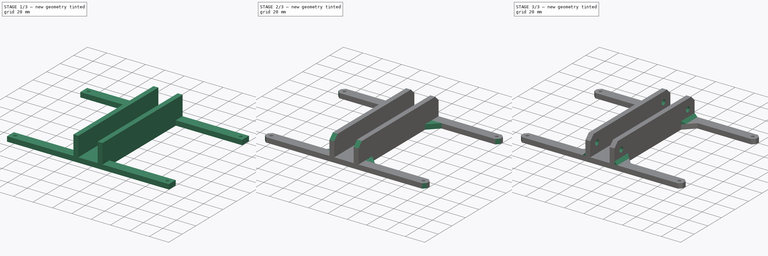
[diagram: build sequence overview — one tinted view per stage of 3, left to right]
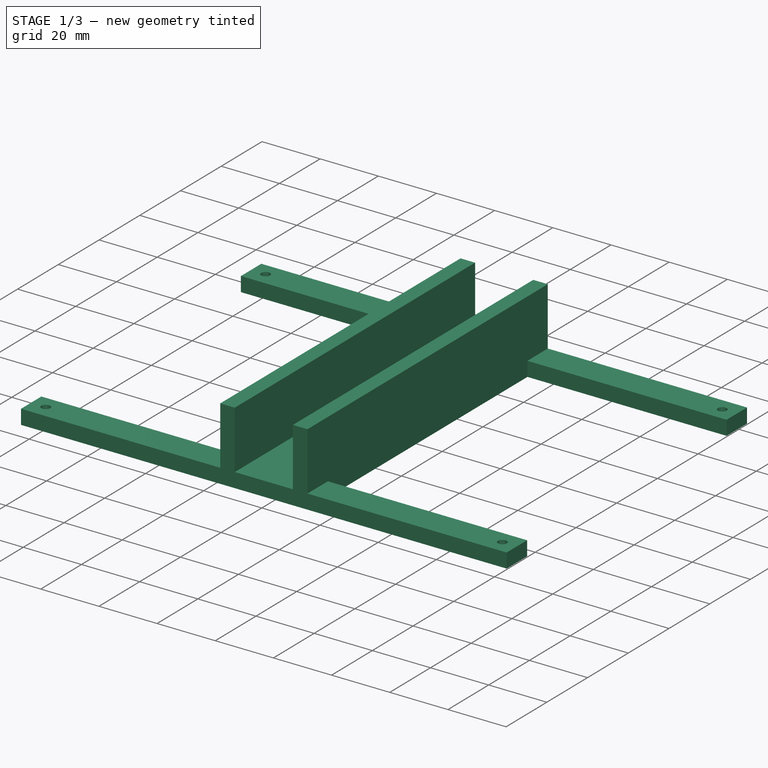
[diagram: stage 1 of 3 — iso view after this stage's code; geometry added in this stage tinted green]
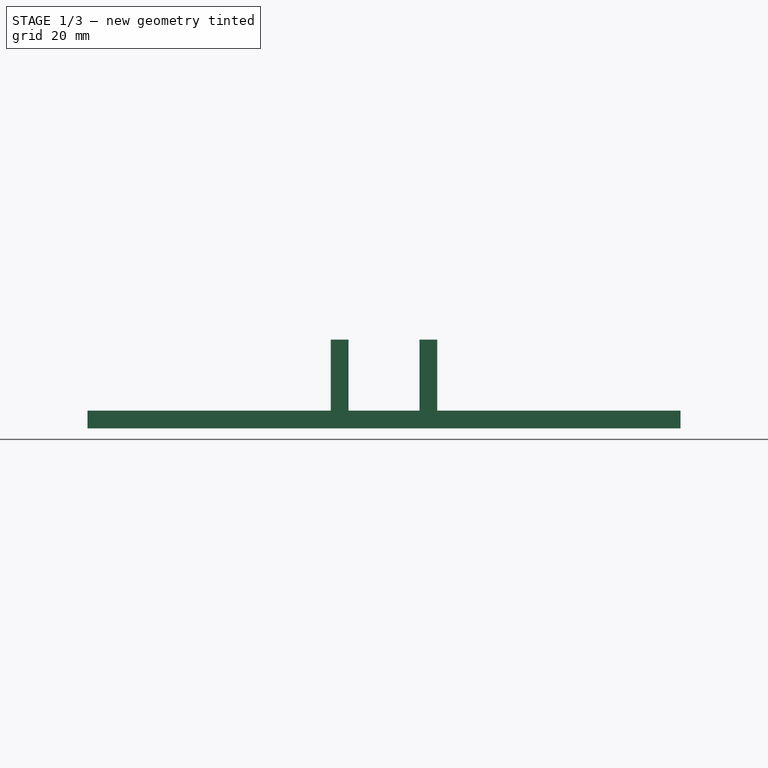
[diagram: stage 1 of 3 — front view after this stage's code; geometry added in this stage tinted green]
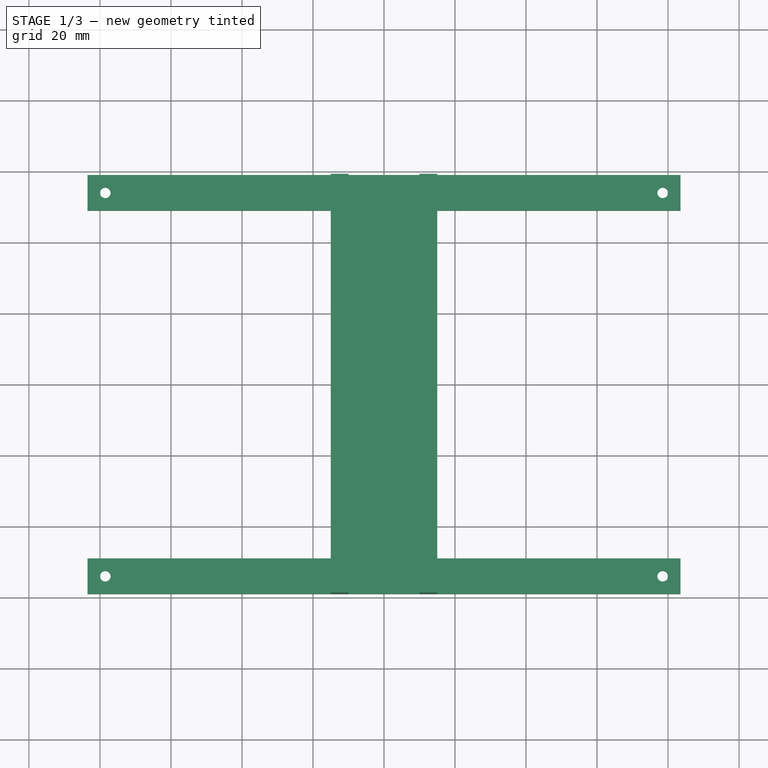
[diagram: stage 1 of 3 — top view after this stage's code; geometry added in this stage tinted green]
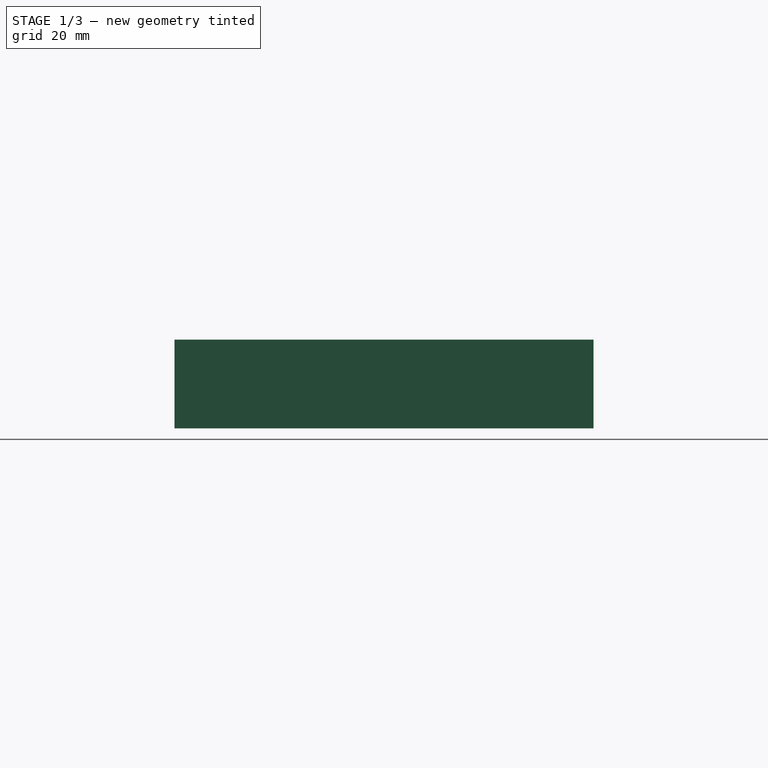
[diagram: stage 1 of 3 — right view after this stage's code; geometry added in this stage tinted green]
FCSTD DOCUMENT  (FreeCAD 0.19R24291 (Git))
Label: monitor-mount
License: All rights reserved
LicenseURL: http://en.wikipedia.org/wiki/All_rights_reserved
objects: PartDesign::Chamfer×4, Sketcher::SketchObject×3, PartDesign::Pad×2, PartDesign::Pocket×1, PartDesign::Body×1
note: 18 computed .brp shape members not serialized (recipe doc carries the construction recipe); baked Part::Feature solids carry a one-line shape summary decoded from their .brp

FEATURE [Sketcher::SketchObject] Sketch
  FullyConstrained = true
  MapMode = 5
  Support = -> [XY_Plane]
  sketch-geometry (20):
    g0: LineSegment StartX=-78.5 StartY=54 StartZ=0 EndX=78.5 EndY=54 EndZ=0
    g1: LineSegment StartX=78.5 StartY=54 StartZ=0 EndX=78.5 EndY=-54 EndZ=0
    g2: LineSegment StartX=78.5 StartY=-54 StartZ=0 EndX=-78.5 EndY=-54 EndZ=0
    g3: LineSegment StartX=-78.5 StartY=-54 StartZ=0 EndX=-78.5 EndY=54 EndZ=0
    g4: Circle CenterX=-78.5 CenterY=54 CenterZ=0 NormalX=0 NormalY=0 NormalZ=1 AngleXU=0 Radius=1.5
    g5: Circle CenterX=78.5 CenterY=54 CenterZ=0 NormalX=0 NormalY=0 NormalZ=1 AngleXU=0 Radius=1.5
    g6: Circle CenterX=78.5 CenterY=-54 CenterZ=0 NormalX=0 NormalY=0 NormalZ=1 AngleXU=0 Radius=1.5
    g7: Circle CenterX=-78.5 CenterY=-54 CenterZ=0 NormalX=0 NormalY=0 NormalZ=1 AngleXU=0 Radius=1.5
    g8: LineSegment StartX=-83.5 StartY=59 StartZ=0 EndX=-83.5 EndY=49 EndZ=0
    g9: LineSegment StartX=-83.5 StartY=49 StartZ=0 EndX=-15 EndY=49 EndZ=0
    g10: LineSegment StartX=-15 StartY=49 StartZ=0 EndX=-15 EndY=-49 EndZ=0
    g11: LineSegment StartX=-15 StartY=-49 StartZ=0 EndX=-83.5 EndY=-49 EndZ=0
    g12: LineSegment StartX=-83.5 StartY=-49 StartZ=0 EndX=-83.5 EndY=-59 EndZ=0
    g13: LineSegment StartX=-83.5 StartY=-59 StartZ=0 EndX=83.5 EndY=-59 EndZ=0
    g14: LineSegment StartX=83.5 StartY=-59 StartZ=0 EndX=83.5 EndY=-49 EndZ=0
    g15: LineSegment StartX=83.5 StartY=-49 StartZ=0 EndX=15 EndY=-49 EndZ=0
    g16: LineSegment StartX=15 StartY=-49 StartZ=0 EndX=15 EndY=49 EndZ=0
    g17: LineSegment StartX=15 StartY=49 StartZ=0 EndX=83.5 EndY=49 EndZ=0
    g18: LineSegment StartX=83.5 StartY=49 StartZ=0 EndX=83.5 EndY=59 EndZ=0
    g19: LineSegment StartX=83.5 StartY=59 StartZ=0 EndX=-83.5 EndY=59 EndZ=0
  constraints (56):
    c: Coincident(g0,g1)
    c: Coincident(g1,g2)
    c: Coincident(g2,g3)
    c: Coincident(g3,g0)
    c: Horizontal(g0)
    c: Horizontal(g2)
    c: Vertical(g1)
    c: Vertical(g3)
    c: DistanceY(g3,g3) = 108
    c: DistanceX(g0,g0) = 157
    c: DistanceX(g2,g-1) = 78.5
    c: DistanceY(g-1,g0) = 54
    c: Coincident(g4,g0)
    c: Coincident(g5,g0)
    c: Coincident(g6,g1)
    c: Coincident(g7,g2)
    c: Diameter(g4) = 3
    c: Diameter(g5) = 3
    c: Diameter(g6) = 3
    c: Diameter(g7) = 3
    c: Vertical(g8)
    c: Coincident(g8,g9)
    c: Horizontal(g9)
    c: Coincident(g9,g10)
    c: Vertical(g10)
    c: Coincident(g10,g11)
    c: Horizontal(g11)
    c: Coincident(g11,g12)
    c: Vertical(g12)
    c: Coincident(g12,g13)
    c: Horizontal(g13)
    c: Coincident(g13,g14)
    c: Vertical(g14)
    c: Coincident(g14,g15)
    c: Horizontal(g15)
    c: Coincident(g15,g16)
    c: Vertical(g16)
    c: Coincident(g16,g17)
    c: Horizontal(g17)
    c: Coincident(g17,g18)
    c: Vertical(g18)
    c: Coincident(g18,g19)
    c: Coincident(g19,g8)
    c: Horizontal(g19)
    c: DistanceX(g8,g4) = 5
    c: DistanceY(g4,g8) = 5
    c: DistanceY(g8,g4) = 5
    c: DistanceY(g18,g18) = 10
    c: DistanceX(g5,g17) = 5
    c: DistanceX(g6,g14) = 5
    c: DistanceY(g13,g6) = 5
    c: DistanceY(g14,g14) = 10
    c: DistanceY(g12,g12) = 10
    c: DistanceX(g12,g7) = 5
    c: DistanceX(g9,g16) = 30
    c: Equal(g9,g17)
FEATURE [PartDesign::Pad] Pad
  Direction = (1,1,1)
  Length = 5
  Length2 = 100
  Profile = -> Sketch
  Reversed = true
  Type = 0
FEATURE [Sketcher::SketchObject] Sketch001
  FullyConstrained = true
  MapMode = 5
  Support = -> [XY_Plane]
  sketch-geometry (8):
    g0: LineSegment StartX=-15 StartY=59 StartZ=0 EndX=-10 EndY=59 EndZ=0
    g1: LineSegment StartX=-10 StartY=59 StartZ=0 EndX=-10 EndY=-59 EndZ=0
    g2: LineSegment StartX=-10 StartY=-59 StartZ=0 EndX=-15 EndY=-59 EndZ=0
    g3: LineSegment StartX=-15 StartY=-59 StartZ=0 EndX=-15 EndY=59 EndZ=0
    g4: LineSegment StartX=15 StartY=59 StartZ=0 EndX=10 EndY=59 EndZ=0
    g5: LineSegment StartX=10 StartY=59 StartZ=0 EndX=10 EndY=-59 EndZ=0
    g6: LineSegment StartX=10 StartY=-59 StartZ=0 EndX=15 EndY=-59 EndZ=0
    g7: LineSegment StartX=15 StartY=-59 StartZ=0 EndX=15 EndY=59 EndZ=0
  constraints (24):
    c: Coincident(g0,g1)
    c: Coincident(g1,g2)
    c: Coincident(g2,g3)
    c: Coincident(g3,g0)
    c: Horizontal(g0)
    c: Horizontal(g2)
    c: Vertical(g1)
    c: Vertical(g3)
    c: Coincident(g4,g5)
    c: Coincident(g5,g6)
    c: Coincident(g6,g7)
    c: Coincident(g7,g4)
    c: Horizontal(g4)
    c: Horizontal(g6)
    c: Vertical(g5)
    c: Vertical(g7)
    c: DistanceX(g1,g5) = 20
    c: DistanceX(g2,g2) = 5
    c: DistanceX(g6,g6) = 5
    c: DistanceX(g1,g-1) = 10
    c: DistanceY(g3,g3) = 118
    c: DistanceY(g-1,g0) = 59
    c: PointOnObject(g4,g0)
    c: PointOnObject(g5,g2)
FEATURE [PartDesign::Pad] Pad001
  BaseFeature = -> Pad
  Direction = (1,1,1)
  Length = 20
  Length2 = 100
  Profile = -> Sketch001
  Type = 0
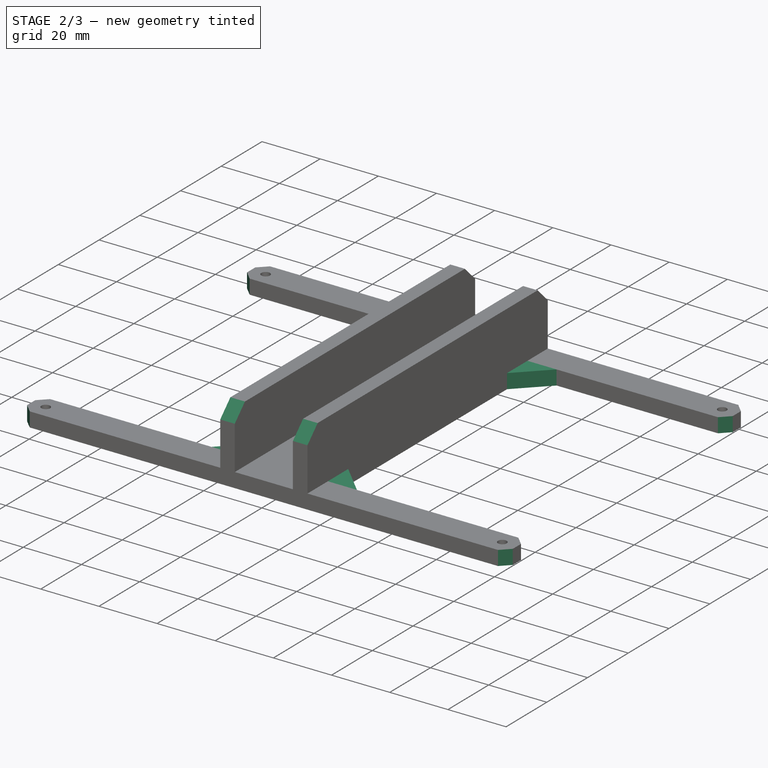
[diagram: stage 2 of 3 — iso view after this stage's code; geometry added in this stage tinted green]
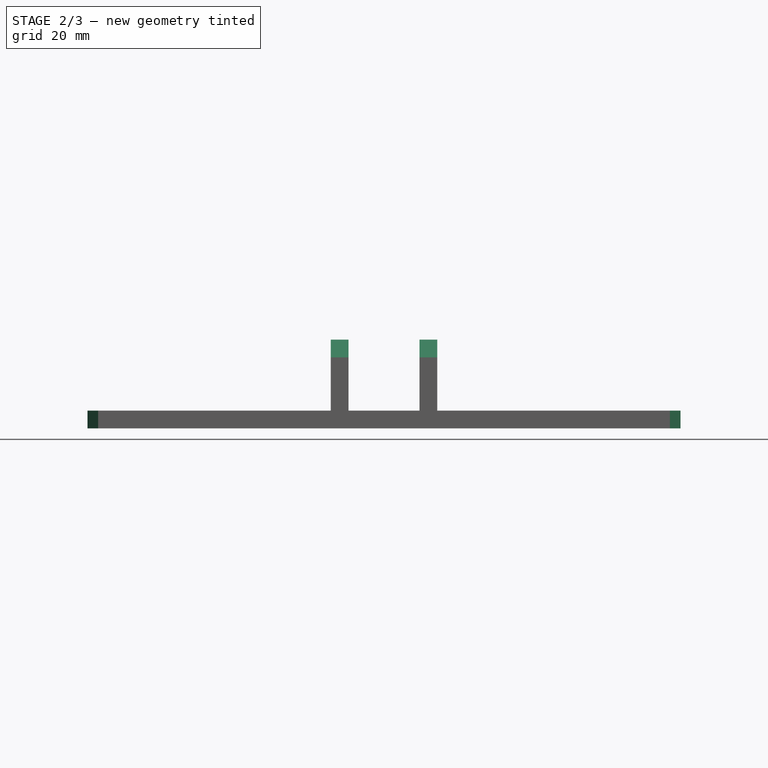
[diagram: stage 2 of 3 — front view after this stage's code; geometry added in this stage tinted green]
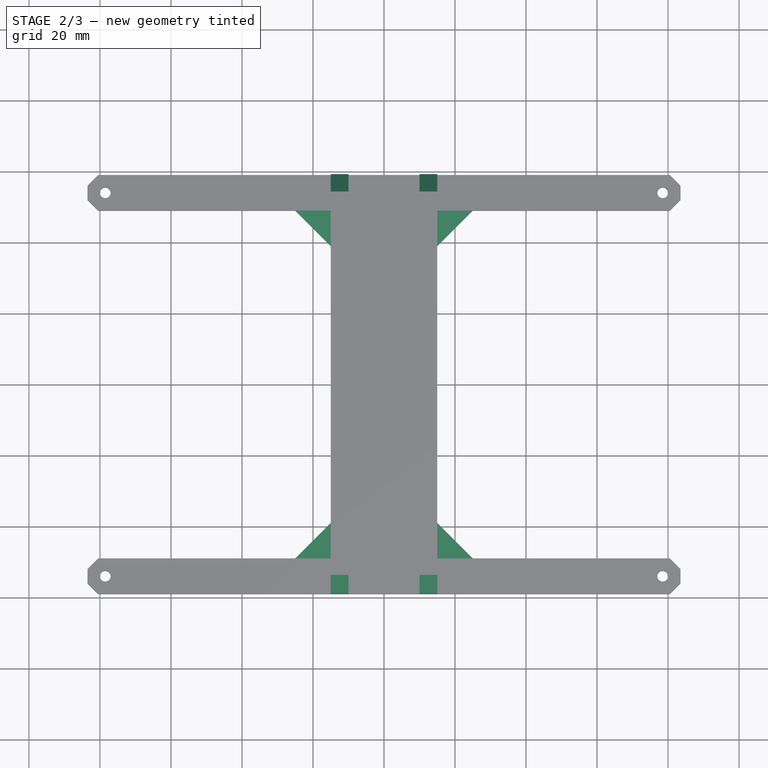
[diagram: stage 2 of 3 — top view after this stage's code; geometry added in this stage tinted green]
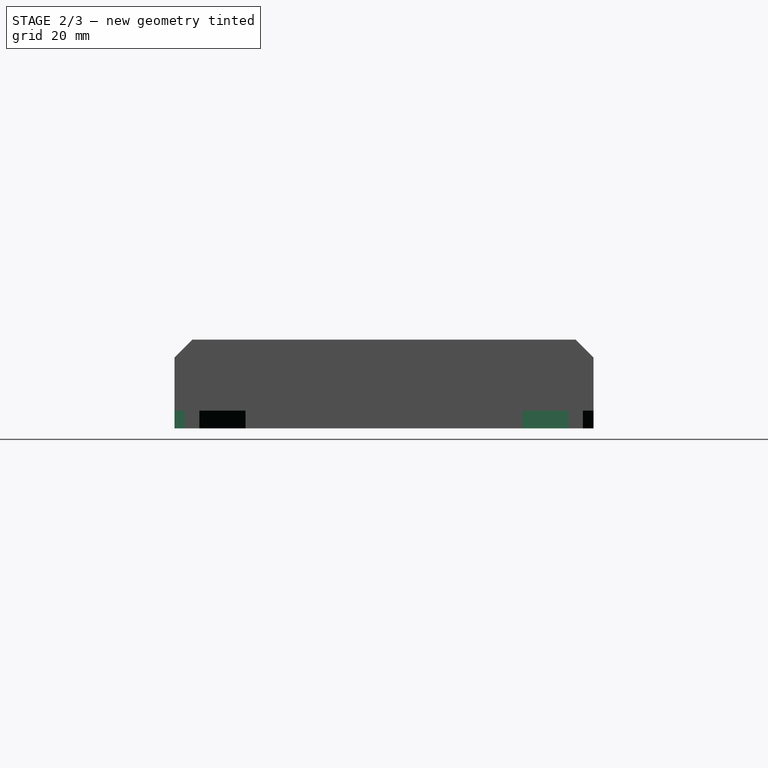
[diagram: stage 2 of 3 — right view after this stage's code; geometry added in this stage tinted green]
FEATURE [PartDesign::Chamfer] Chamfer
  Angle = 45
  Base = -> Pad001 [Edge2,Edge1,Edge50,Edge52,Edge54,Edge30,Edge5,Edge59]
  BaseFeature = -> Pad001
  ChamferType = 0
  FlipDirection = false
  Size = 3
  Size2 = 1
  SupportTransform = false
FEATURE [PartDesign::Chamfer] Chamfer001
  Angle = 45
  Base = -> Chamfer [Edge95,Edge101,Edge89,Edge93]
  BaseFeature = -> Chamfer
  ChamferType = 0
  FlipDirection = false
  Size = 5
  Size2 = 1
  SupportTransform = false
FEATURE [PartDesign::Chamfer] Chamfer002
  Angle = 45
  Base = -> Chamfer001 [Edge22,Edge23,Edge96,Edge95]
  BaseFeature = -> Chamfer001
  ChamferType = 0
  FlipDirection = false
  Size = 10
  Size2 = 1
  SupportTransform = false
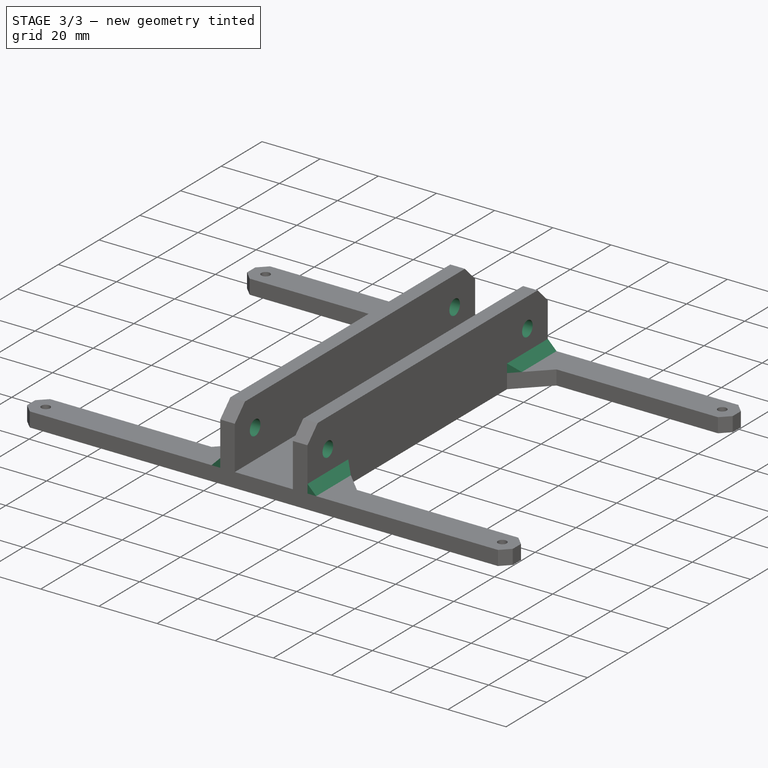
[diagram: stage 3 of 3 — iso view after this stage's code; geometry added in this stage tinted green]
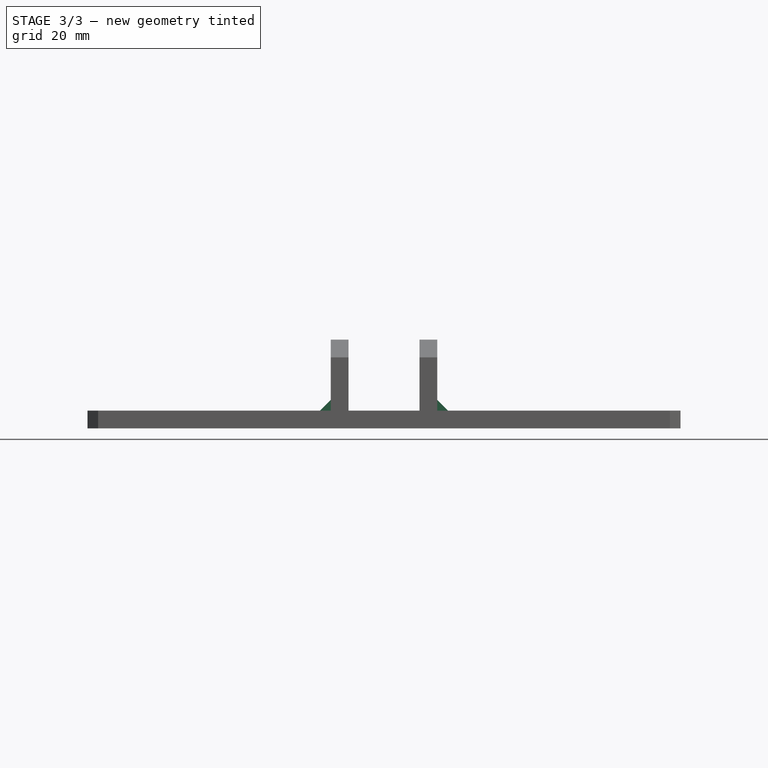
[diagram: stage 3 of 3 — front view after this stage's code; geometry added in this stage tinted green]
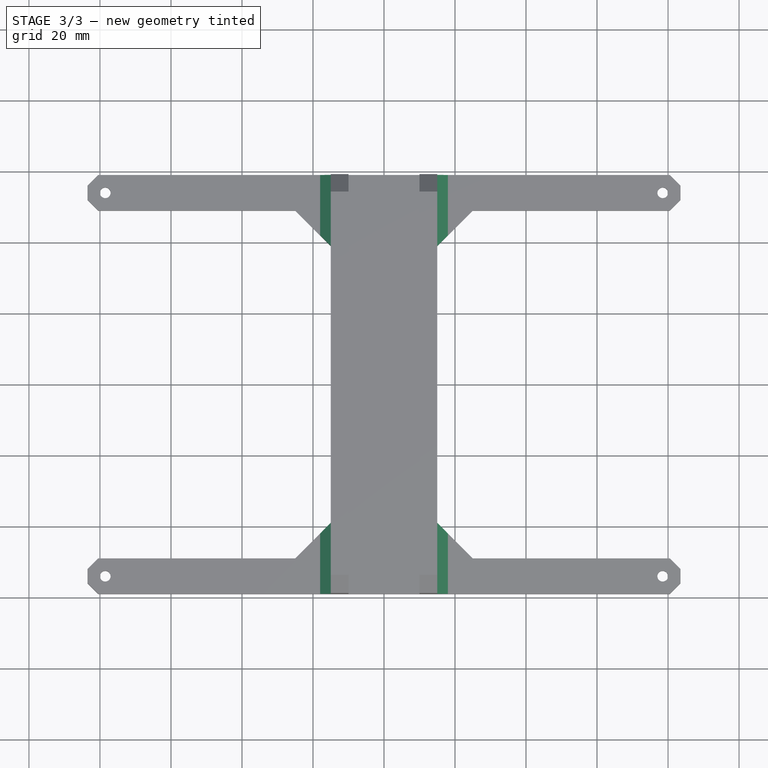
[diagram: stage 3 of 3 — top view after this stage's code; geometry added in this stage tinted green]
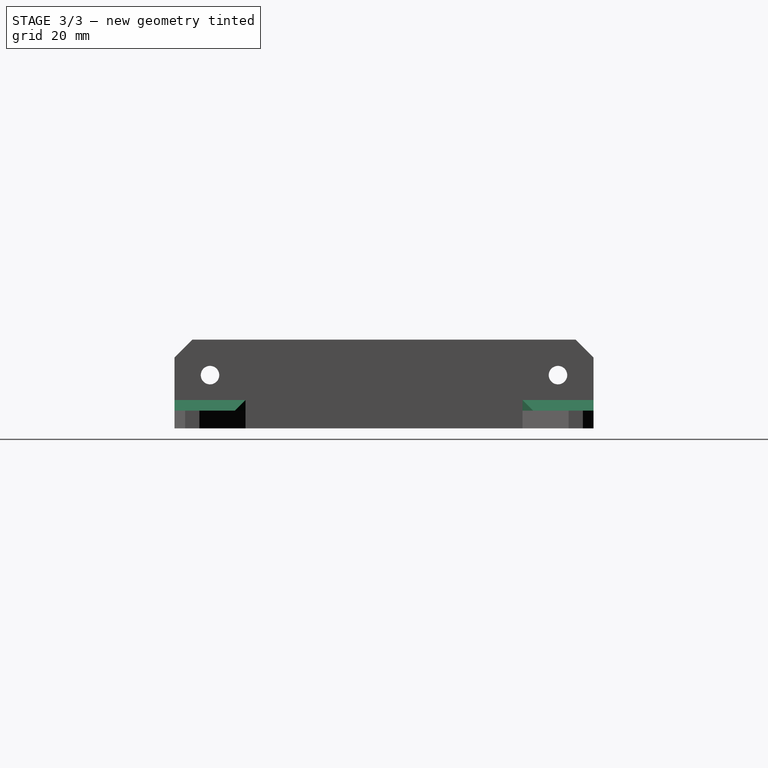
[diagram: stage 3 of 3 — right view after this stage's code; geometry added in this stage tinted green]
FEATURE [PartDesign::Chamfer] Chamfer003
  Angle = 45
  Base = -> Chamfer002 [Edge27,Edge6,Edge88,Edge127]
  BaseFeature = -> Chamfer002
  ChamferType = 0
  FlipDirection = false
  Size = 3
  Size2 = 1
  SupportTransform = false
FEATURE [Sketcher::SketchObject] Sketch002
  FullyConstrained = true
  MapMode = 5
  Placement = pos=(0,0,0) rot=(0.57735,0.57735,0.57735;2.0944rad)
  Support = -> [YZ_Plane]
  sketch-geometry (3):
    g0: Circle CenterX=-49 CenterY=10 CenterZ=0 NormalX=0 NormalY=0 NormalZ=1 AngleXU=0 Radius=2.6
    g1: Circle CenterX=49 CenterY=10 CenterZ=0 NormalX=0 NormalY=0 NormalZ=1 AngleXU=0 Radius=2.6
    g2: LineSegment StartX=-49 StartY=10 StartZ=0 EndX=49 EndY=10 EndZ=0
  constraints (8):
    c: Diameter(g1) = 5.2
    c: Diameter(g0) = 5.2
    c: Coincident(g2,g0)
    c: Coincident(g2,g1)
    c: Horizontal(g2)
    c: DistanceX(g2,g2) = 98
    c: DistanceY(g-1,g0) = 10
    c: DistanceX(g0,g-1) = 49
FEATURE [PartDesign::Pocket] Pocket
  BaseFeature = -> Chamfer003
  Length = 17
  Length2 = 100
  Profile = -> Sketch002
  Type = 4
FEATURE [PartDesign::Body] Body
  Group = -> [Sketch,Pad,Sketch001,Pad001,Chamfer,Chamfer001,Chamfer002,Chamfer003,Sketch002,Pocket]
  Origin = -> Origin
  Tip = -> Pocket
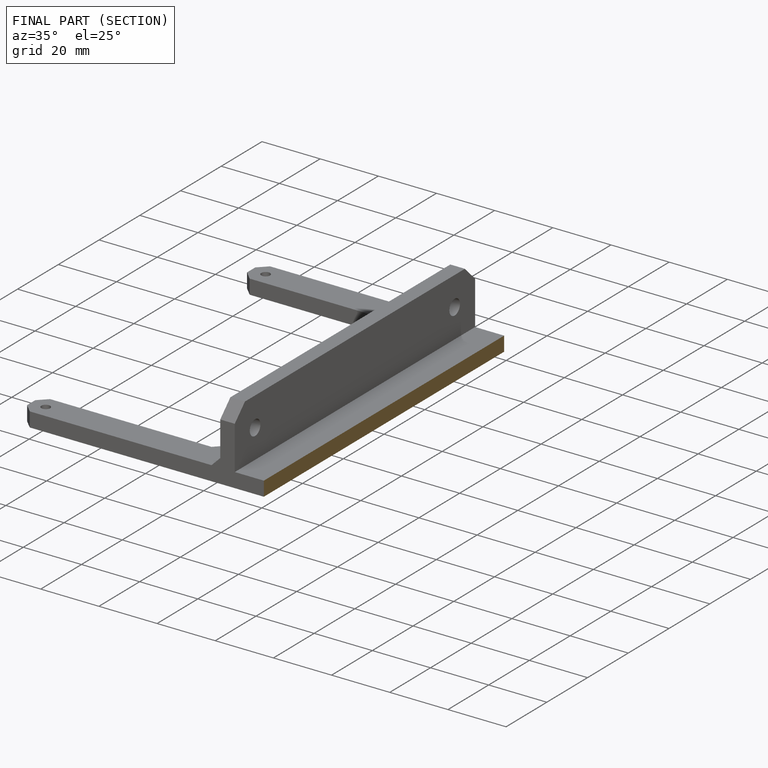
[diagram: finished part — half-section view (interior)]
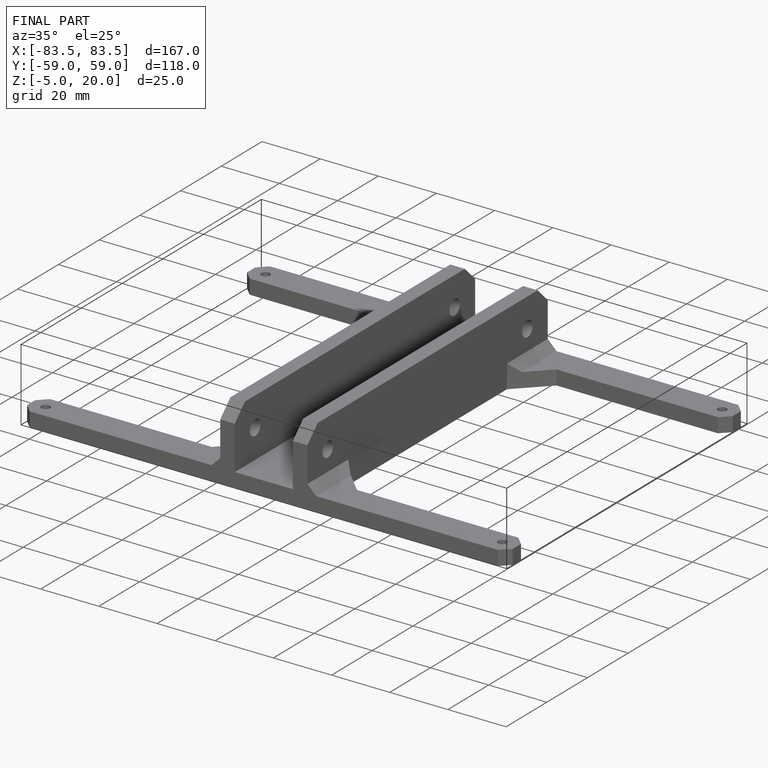
[diagram: finished part — iso view with bounding-box wireframe]
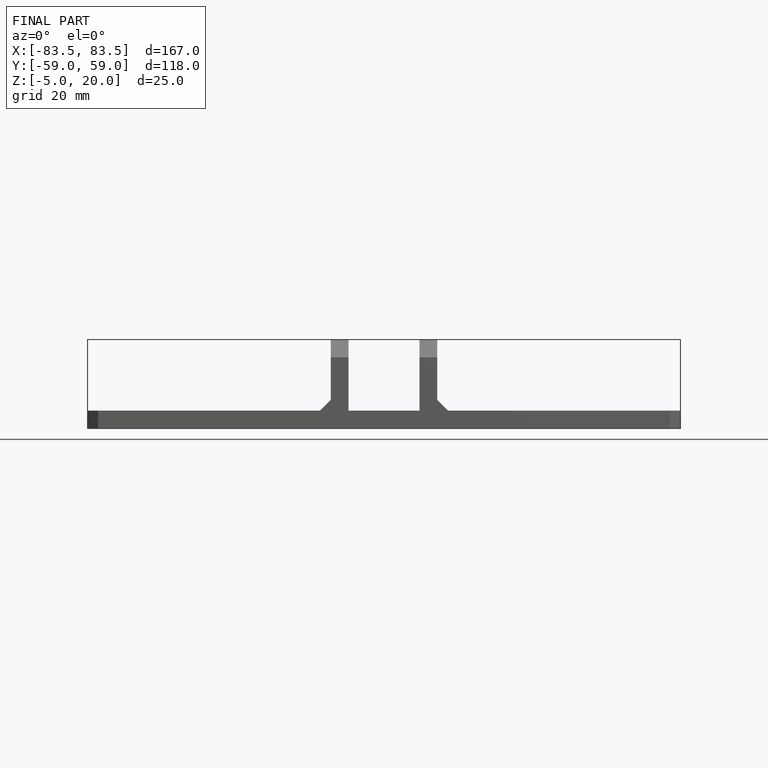
[diagram: finished part — front view with bounding-box wireframe]
